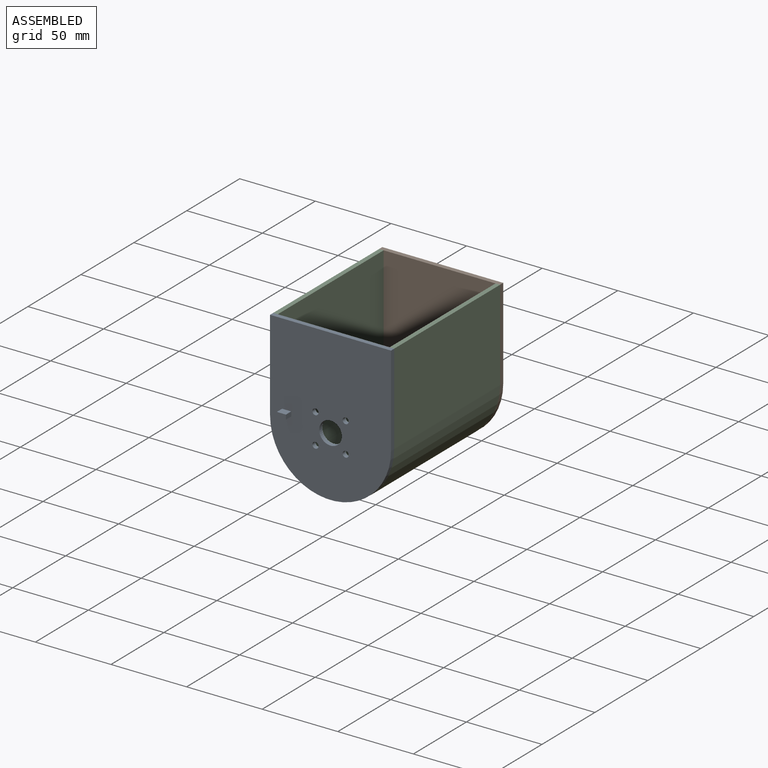
[diagram: assembled view]
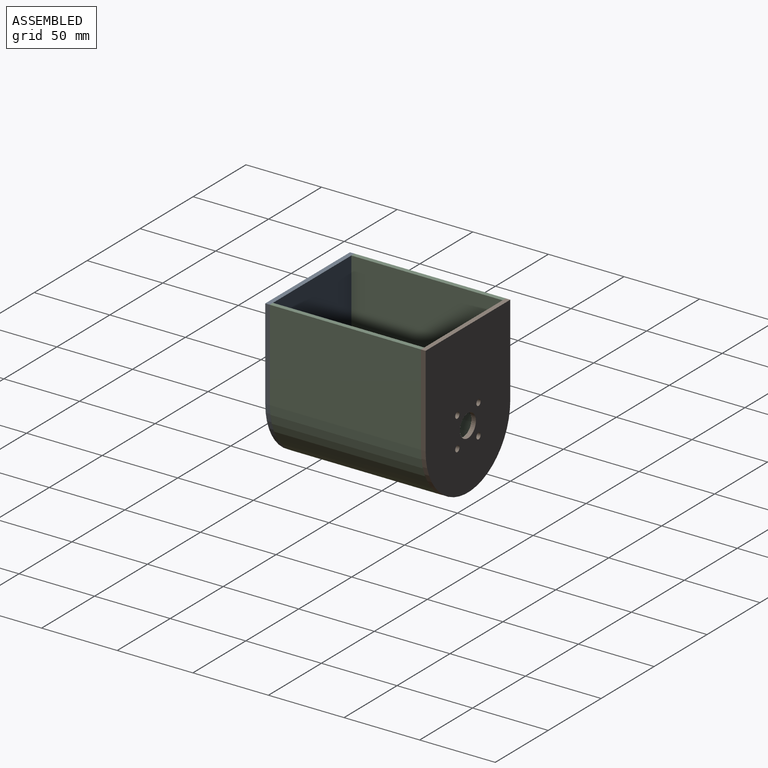
[diagram: assembled view, second angle]
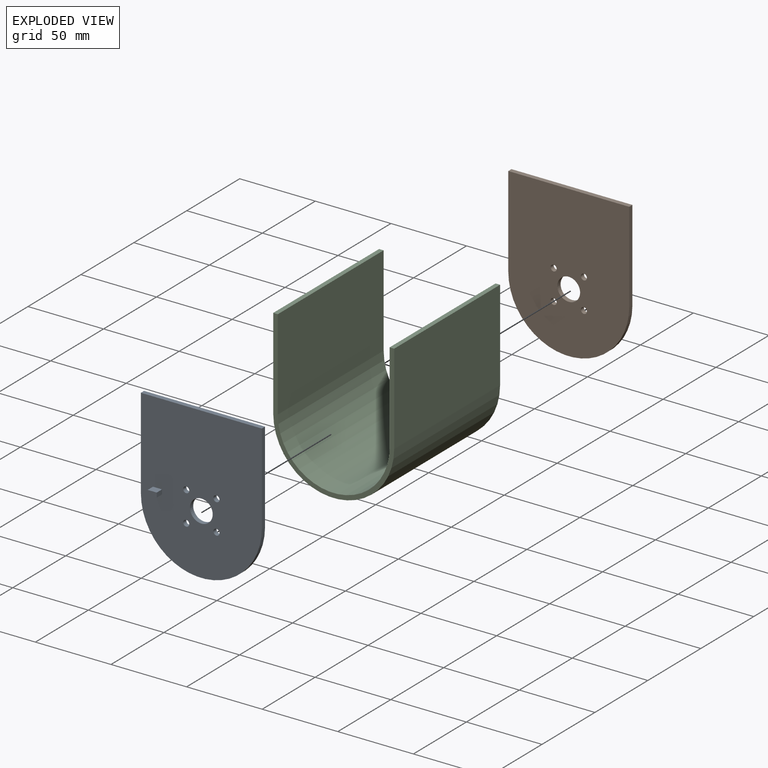
[diagram: exploded view]
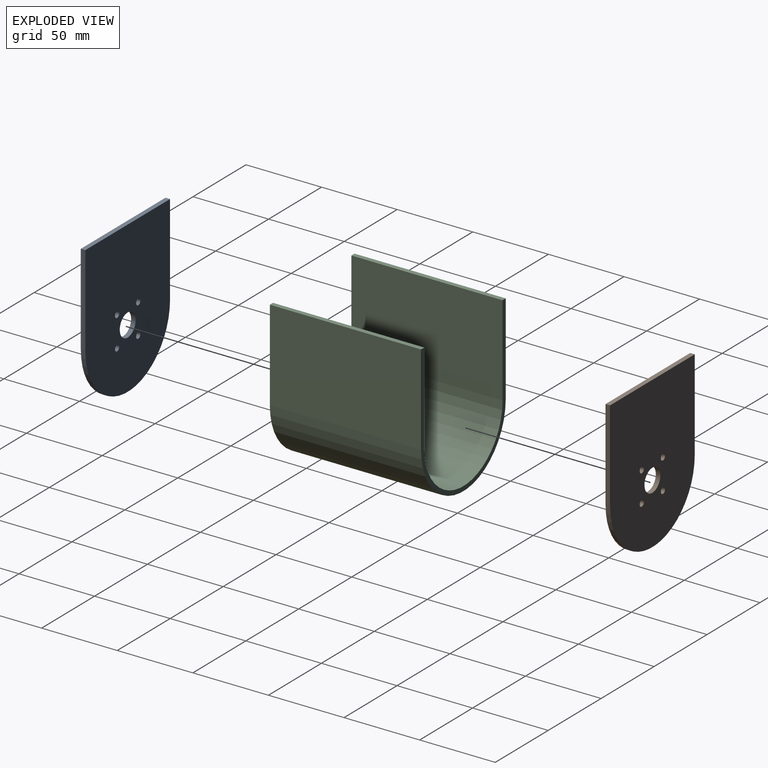
[diagram: exploded view, second angle]
ASSEMBLY  parts=3 mates=2
PART A: 16 faces, bbox 80x8x100 mm
  f0: plane 100x80mm, normal (0,-1,0), area 7068.3mm2, adj f1,f2,f3,f4,f6,f7,f8,f9
  f1: cylinder r=40mm len=80mm, axis (0,1,0), area 377mm2, adj f0,f2,f4,f5
  f2: plane 60x3mm, normal (1,0,0), area 180mm2, adj f0,f1,f3,f5
  f3: plane 80x3mm, normal (0,0,1), area 240mm2, adj f0,f2,f4,f5
  f4: plane 60x3mm, normal (-1,0,0), area 180mm2, adj f0,f1,f3,f5
  f5: plane 100x80mm, normal (0,1,0), area 7086.3mm2, adj f1,f2,f3,f4,f6,f7,f8,f9
  f6: cylinder r=7.5mm len=15mm, axis (0,-1,0), area 141.4mm2, adj f0,f5
  f7: cylinder r=2mm len=4mm, axis (0,-1,0), area 37.7mm2, adj f0,f5
  f8: cylinder r=2mm len=4mm, axis (0,-1,0), area 37.7mm2, adj f0,f5
  f9: cylinder r=2mm len=4mm, axis (0,-1,0), area 37.7mm2, adj f0,f5
  f10: cylinder r=2mm len=4mm, axis (0,-1,0), area 37.7mm2, adj f0,f5
  f11: plane 6x5mm, normal (0,0,1), area 30mm2, adj f0,f12,f14,f15
  f12: plane 5x3mm, normal (-1,0,0), area 15mm2, adj f0,f11,f13,f15
  f13: plane 6x5mm, normal (0,0,-1), area 30mm2, adj f0,f12,f14,f15
  f14: plane 5x3mm, normal (1,0,0), area 15mm2, adj f0,f11,f13,f15
  f15: plane 6x3mm, normal (0,-1,0), area 18mm2, adj f11,f12,f13,f14
PART B: 11 faces, bbox 80x3x100 mm
  f0: cylinder r=40mm len=80mm, axis (0,-1,0), area 377mm2, adj f1,f3,f4,f5
  f1: plane 60x3mm, normal (1,0,0), area 180mm2, adj f0,f2,f4,f5
  f2: plane 80x3mm, normal (0,0,1), area 240mm2, adj f1,f3,f4,f5
  f3: plane 60x3mm, normal (-1,0,0), area 180mm2, adj f0,f2,f4,f5
  f4: plane 100x80mm, normal (0,1,0), area 7086.3mm2, adj f0,f1,f2,f3,f6,f7,f8,f9
  f5: plane 100x80mm, normal (0,-1,0), area 7086.3mm2, adj f0,f1,f2,f3,f6,f7,f8,f9
  f6: cylinder r=7.5mm len=15mm, axis (0,1,0), area 141.4mm2, adj f4,f5
  f7: cylinder r=2mm len=4mm, axis (0,1,0), area 37.7mm2, adj f4,f5
  f8: cylinder r=2mm len=4mm, axis (0,1,0), area 37.7mm2, adj f4,f5
  f9: cylinder r=2mm len=4mm, axis (0,1,0), area 37.7mm2, adj f4,f5
  f10: cylinder r=2mm len=4mm, axis (0,1,0), area 37.7mm2, adj f4,f5
PART C: 10 faces, bbox 80x100x100 mm
  f0: cylinder r=37mm len=100mm, axis (0,1,0), area 11623.9mm2, adj f1,f7,f8,f9
  f1: plane 100x60mm, normal (1,0,0), area 6000mm2, adj f0,f2,f8,f9
  f2: plane 100x3mm, normal (0,0,1), area 300mm2, adj f1,f3,f8,f9
  f3: plane 100x60mm, normal (-1,0,0), area 6000mm2, adj f2,f4,f8,f9
  f4: cylinder r=40mm len=100mm, axis (0,1,0), area 12566.4mm2, adj f3,f5,f8,f9
  f5: plane 100x60mm, normal (1,0,0), area 6000mm2, adj f4,f6,f8,f9
  f6: plane 100x3mm, normal (0,0,1), area 300mm2, adj f5,f7,f8,f9
  f7: plane 100x60mm, normal (-1,0,0), area 6000mm2, adj f0,f6,f8,f9
  f8: plane 100x80mm, normal (0,-1,0), area 722.9mm2, adj f0,f1,f2,f3,f4,f5,f6,f7
  f9: plane 100x80mm, normal (0,1,0), area 722.9mm2, adj f0,f1,f2,f3,f4,f5,f6,f7
PLACE A t=(-20.45,-60.43,11.66)mm
PLACE B t=(-20.45,39.57,11.66)mm
PLACE C t=(-20.45,39.57,11.66)mm
MATE fastened C.f8 <-> A.f5  axis (0,-1,0) through (-60.45,-60.43,71.66)mm
MATE fastened B.f5 <-> C.f9  axis (0,-1,0) through (-60.45,39.57,71.66)mm
